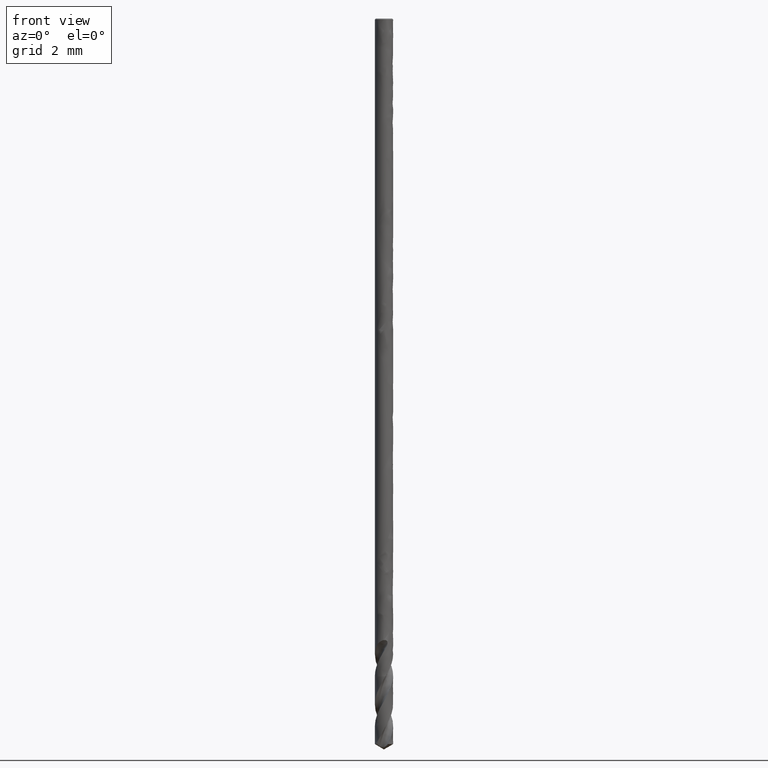
[diagram: clean part render]
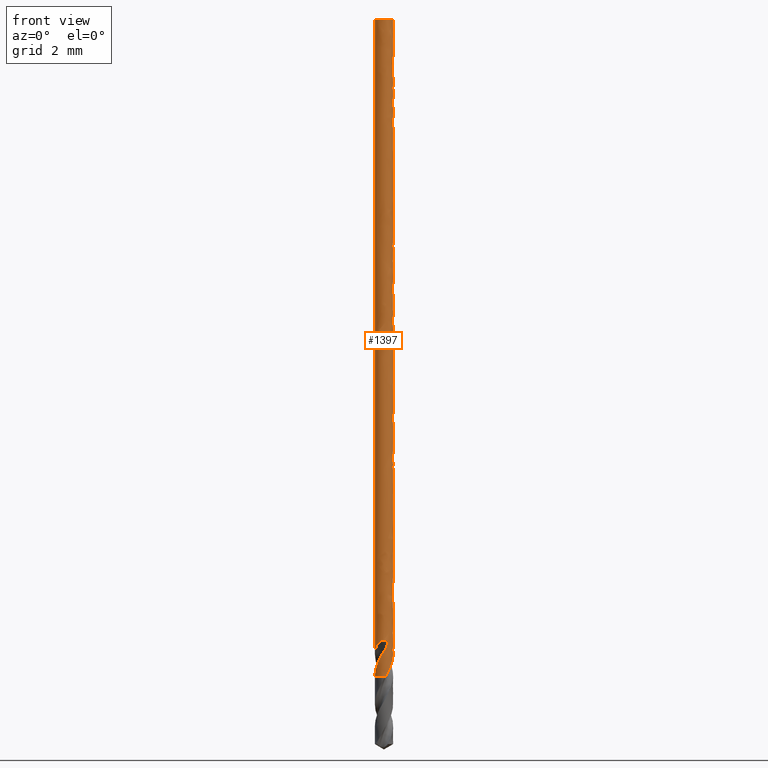
[diagram: same view with one face highlighted and labeled with its STEP entity id]
A machine part, front view. The second image highlights one B-rep face of the part: STEP entity #1397.
In plain terms, the highlighted face is a freeform B-spline surface patch.
Its self-contained STEP definition (entity closure, byte-faithful):
#73 = VERTEX_POINT('', #74);
#74 = CARTESIAN_POINT('', (-0.25, 1.68388934882762E-17, -0.0250000000000004));
#90 = EDGE_CURVE('', #73, #73, #91, .T.);
#91 = CIRCLE('', #92, 0.25);
#92 = AXIS2_PLACEMENT_3D('', #93, #94, #95);
#93 = CARTESIAN_POINT('', (9.37349864163736E-35, 1.53080849893427E-18, -0.0250000000000004));
#94 = DIRECTION('', (3.74939945665464E-33, 6.12323399573677E-17, -1.));
#95 = DIRECTION('', (-1., 6.12323399573677E-17, 0.));
#131 = VERTEX_POINT('', #132);
#132 = CARTESIAN_POINT('', (0.249906663317523, -0.00683078542351683, -18.));
#138 = EDGE_CURVE('', #139, #131, #141, .T.);
#139 = VERTEX_POINT('', #140);
#140 = CARTESIAN_POINT('', (0.240596655654178, 0.0679209046466918, -17.8687390508482));
#141 = B_SPLINE_CURVE_WITH_KNOTS('', 3, (#142, #143, #144, #145, #146, #147, #148, #149, #150, #151, #152, #153, #154), .UNSPECIFIED., .F., .U., (4, 3, 3, 3, 4), (0., 0.0872858098469411, 0.126138945142083, 0.137665234393021, 0.151452071354877), .UNSPECIFIED.);
#142 = CARTESIAN_POINT('', (0.240596655654178, 0.0679209046466918, -17.8687390508482));
#143 = CARTESIAN_POINT('', (0.244544084355322, 0.0539379026700701, -17.8939467519686));
#144 = CARTESIAN_POINT('', (0.247270648675801, 0.0395997103062645, -17.9191802059777));
#145 = CARTESIAN_POINT('', (0.248731675135994, 0.0251506219414607, -17.9443917902301));
#146 = CARTESIAN_POINT('', (0.249382015195017, 0.0187189649961497, -17.9556141079891));
#147 = CARTESIAN_POINT('', (0.249782756391597, 0.012261578020659, -17.9668389397494));
#148 = CARTESIAN_POINT('', (0.249932705935518, 0.0058002158365557, -17.9780620357126));
#149 = CARTESIAN_POINT('', (0.249977190423144, 0.00388336848502778, -17.9813915134853));
#150 = CARTESIAN_POINT('', (0.249999621055234, 0.00196603606763059, -17.9847210796947));
#151 = CARTESIAN_POINT('', (0.249999995238713, 4.87918370018735E-5, -17.9880506261048));
#152 = CARTESIAN_POINT('', (0.250000442807441, -0.00224446430539332, -17.9920331665838));
#153 = CARTESIAN_POINT('', (0.249969317482205, -0.00453856099134684, -17.996017358388));
#154 = CARTESIAN_POINT('', (0.249906663317523, -0.00683078542351683, -18.));
#247 = EDGE_CURVE('', #248, #139, #250, .T.);
#248 = VERTEX_POINT('', #249);
#249 = CARTESIAN_POINT('', (0.103707371253155, 0.2274747923348, -17.4891896216887));
#250 = B_SPLINE_CURVE_WITH_KNOTS('', 3, (#251, #252, #253, #254, #255, #256, #257, #258, #259, #260, #261, #262, #263, #264, #265, #266, #267, #268, #269, #270, #271, #272, #273, #274, #275, #276, #277, #278), .UNSPECIFIED., .F., .U., (4, 3, 3, 3, 3, 3, 3, 3, 3, 4), (0., 0.0389438872491027, 0.0973439906931834, 0.136270608200225, 0.175197098637016, 0.214117251850499, 0.253030250992673, 0.340489507666173, 0.427867221969009, 0.437126125641996), .UNSPECIFIED.);
#251 = CARTESIAN_POINT('', (0.103707371253155, 0.2274747923348, -17.4891896216887));
#252 = CARTESIAN_POINT('', (0.109345425257273, 0.224904363524869, -17.5005966056073));
#253 = CARTESIAN_POINT('', (0.114934663228293, 0.222102557584185, -17.5119781304098));
#254 = CARTESIAN_POINT('', (0.12044368847465, 0.219073772749549, -17.5233355571695));
#255 = CARTESIAN_POINT('', (0.128705001532726, 0.214531818667739, -17.5403671106295));
#256 = CARTESIAN_POINT('', (0.136797798366016, 0.209472559747017, -17.557351739074));
#257 = CARTESIAN_POINT('', (0.144637804410595, 0.203911513984088, -17.5742798674061));
#258 = CARTESIAN_POINT('', (0.149863564273203, 0.200204796211576, -17.5855633196234));
#259 = CARTESIAN_POINT('', (0.15497722471203, 0.196275058489051, -17.5968282486537));
#260 = CARTESIAN_POINT('', (0.159948407322419, 0.192136688310869, -17.6080766197557));
#261 = CARTESIAN_POINT('', (0.164919573705109, 0.187998331641792, -17.6193249541391));
#262 = CARTESIAN_POINT('', (0.169751305158446, 0.183648245769403, -17.6305598440954));
#263 = CARTESIAN_POINT('', (0.174404703231304, 0.179117278593673, -17.6417928196741));
#264 = CARTESIAN_POINT('', (0.179057343732071, 0.174587049058314, -17.6530239665271));
#265 = CARTESIAN_POINT('', (0.183528476164454, 0.169880260571483, -17.6642619138025));
#266 = CARTESIAN_POINT('', (0.187806292156689, 0.16501150452728, -17.6755004282874));
#267 = CARTESIAN_POINT('', (0.192083321826206, 0.160143643428884, -17.6867368769752));
#268 = CARTESIAN_POINT('', (0.196170649981713, 0.155109910657432, -17.6979764985279));
#269 = CARTESIAN_POINT('', (0.200057490436541, 0.149923315465719, -17.7092120908656));
#270 = CARTESIAN_POINT('', (0.208793393206352, 0.138266137398405, -17.7344647461685));
#271 = CARTESIAN_POINT('', (0.21651523283876, 0.125830186214474, -17.759740600353));
#272 = CARTESIAN_POINT('', (0.223088100583752, 0.112834832289997, -17.7849957104008));
#273 = CARTESIAN_POINT('', (0.22965484013559, 0.0998515945440344, -17.8102272739239));
#274 = CARTESIAN_POINT('', (0.235089430474209, 0.0862816710969015, -17.8354833672166));
#275 = CARTESIAN_POINT('', (0.239299371546172, 0.0723589025456238, -17.8607172975599));
#276 = CARTESIAN_POINT('', (0.239745474298634, 0.0708835884577454, -17.8633911890917));
#277 = CARTESIAN_POINT('', (0.240177929378235, 0.0694041614164657, -17.8660651262217));
#278 = CARTESIAN_POINT('', (0.240596655654178, 0.0679209046466911, -17.8687390508482));
#281 = VERTEX_POINT('', #282);
#282 = CARTESIAN_POINT('', (0.0405393630991359, 0.246691224082895, -17.3733331841335));
#291 = EDGE_CURVE('', #292, #281, #294, .T.);
#292 = VERTEX_POINT('', #293);
#293 = CARTESIAN_POINT('', (-0.019484894198326, 0.249239521139968, -17.));
#294 = B_SPLINE_CURVE_WITH_KNOTS('', 3, (#295, #296, #297, #298, #299, #300, #301, #302, #303, #304, #305, #306, #307, #308, #309, #310, #311, #312, #313, #314, #315, #316, #317, #318, #319, #320, #321, #322, #323, #324, #325, #326, #327, #328, #329, #330, #331, #332, #333, #334, #335, #336, #337, #338, #339, #340, #341, #342, #343, #344, #345, #346, #347, #348, #349, #350, #351, #352), .UNSPECIFIED., .F., .U., (4, 3, 3, 3, 3, 3, 3, 3, 3, 3, 3, 3, 3, 3, 3, 3, 3, 3, 3, 4), (0., 0.0174546525459783, 0.0348106917243188, 0.0520386400848942, 0.0691527268931656, 0.086236247491435, 0.1033735452307, 0.11486416143196, 0.126381297336948, 0.152375000844995, 0.178463179536588, 0.204592619545828, 0.230730425648785, 0.270051144584242, 0.309285493265379, 0.348415817912286, 0.374413411671347, 0.391733820990963, 0.430900950231336, 0.455349686628611), .UNSPECIFIED.);
#295 = CARTESIAN_POINT('', (-0.0194848941982343, 0.249239521139975, -17.));
#296 = CARTESIAN_POINT('', (-0.0252854107096909, 0.248786051922879, -17.0000053782072));
#297 = CARTESIAN_POINT('', (-0.0311001756266975, 0.248124163065481, -17.0004563209356));
#298 = CARTESIAN_POINT('', (-0.0367668621542792, 0.247281616476698, -17.001471423935));
#299 = CARTESIAN_POINT('', (-0.0424015336623491, 0.246443830014552, -17.0024807919177));
#300 = CARTESIAN_POINT('', (-0.0479506505895424, 0.24541642458422, -17.0040664626283));
#301 = CARTESIAN_POINT('', (-0.0531658239608024, 0.244281385215021, -17.0062989243239));
#302 = CARTESIAN_POINT('', (-0.0583425083764287, 0.243154722648819, -17.0085149100344));
#303 = CARTESIAN_POINT('', (-0.0632606325051497, 0.241906740577946, -17.0114098327104));
#304 = CARTESIAN_POINT('', (-0.0676489462867, 0.240673264128569, -17.0149025767247));
#305 = CARTESIAN_POINT('', (-0.0720082571824333, 0.239447939871218, -17.0183722367799));
#306 = CARTESIAN_POINT('', (-0.0759129580327543, 0.238221151024045, -17.0224870797097));
#307 = CARTESIAN_POINT('', (-0.0792114216470164, 0.23711927521958, -17.0270091986176));
#308 = CARTESIAN_POINT('', (-0.0825039941183477, 0.236019367394337, -17.031523240902));
#309 = CARTESIAN_POINT('', (-0.0852480922431854, 0.235028239730649, -17.0365022296103));
#310 = CARTESIAN_POINT('', (-0.0874472862143198, 0.234207113755649, -17.0416903609172));
#311 = CARTESIAN_POINT('', (-0.0896534030186946, 0.233383402961724, -17.0468948239204));
#312 = CARTESIAN_POINT('', (-0.0913428922082662, 0.232719324155925, -17.0523642445225));
#313 = CARTESIAN_POINT('', (-0.0925918174240027, 0.232221349892986, -17.0579161895346));
#314 = CARTESIAN_POINT('', (-0.093429226012944, 0.231887456462377, -17.0616387874771));
#315 = CARTESIAN_POINT('', (-0.0940735776408783, 0.231625617912125, -17.0654156306739));
#316 = CARTESIAN_POINT('', (-0.0945500182589157, 0.231430970371813, -17.0692111003526));
#317 = CARTESIAN_POINT('', (-0.0950275584754266, 0.231235873595795, -17.0730153297644));
#318 = CARTESIAN_POINT('', (-0.095337676940208, 0.231107679268898, -17.0768471758239));
#319 = CARTESIAN_POINT('', (-0.0955031537440296, 0.231039277234293, -17.0806820431511));
#320 = CARTESIAN_POINT('', (-0.095876628105319, 0.230884896646834, -17.0893371814701));
#321 = CARTESIAN_POINT('', (-0.095519585878772, 0.231034476009256, -17.0980473680239));
#322 = CARTESIAN_POINT('', (-0.0946316018747144, 0.231397622992601, -17.1066586597076));
#323 = CARTESIAN_POINT('', (-0.0937403904563046, 0.23176208984858, -17.1153012494848));
#324 = CARTESIAN_POINT('', (-0.0923086825177251, 0.232342457069277, -17.1238901736514));
#325 = CARTESIAN_POINT('', (-0.0904652599063082, 0.233058011555245, -17.1323584218051));
#326 = CARTESIAN_POINT('', (-0.088618921719725, 0.23377469776916, -17.1408400634225));
#327 = CARTESIAN_POINT('', (-0.0863532437477145, 0.234628890977358, -17.1492262194445));
#328 = CARTESIAN_POINT('', (-0.0837558896514006, 0.235552437789769, -17.1574882810116));
#329 = CARTESIAN_POINT('', (-0.0811577039372725, 0.236476280302325, -17.165752987916));
#330 = CARTESIAN_POINT('', (-0.0782219967466266, 0.237471328351126, -17.1739088396246));
#331 = CARTESIAN_POINT('', (-0.0750135602219949, 0.238480535438056, -17.1819460574474));
#332 = CARTESIAN_POINT('', (-0.0701869106435889, 0.23999874810122, -17.1940369415021));
#333 = CARTESIAN_POINT('', (-0.0647339331783847, 0.241550140131075, -17.2058843639961));
#334 = CARTESIAN_POINT('', (-0.0588257740948464, 0.242980510128164, -17.217496370325));
#335 = CARTESIAN_POINT('', (-0.0529305926275984, 0.244407738234062, -17.2290828702041));
#336 = CARTESIAN_POINT('', (-0.0465716049133888, 0.245716842103784, -17.2404552701596));
#337 = CARTESIAN_POINT('', (-0.0398994749940521, 0.246795526489439, -17.2516515305346));
#338 = CARTESIAN_POINT('', (-0.0332450352338348, 0.247871350904043, -17.2628181056921));
#339 = CARTESIAN_POINT('', (-0.0262707402816778, 0.248719196139192, -17.2738214618359));
#340 = CARTESIAN_POINT('', (-0.0191230388517854, 0.249267545791813, -17.2847182982745));
#341 = CARTESIAN_POINT('', (-0.0143742145125503, 0.249631860977936, -17.2919579910076));
#342 = CARTESIAN_POINT('', (-0.00954631217302101, 0.249865043801591, -17.2991538885086));
#343 = CARTESIAN_POINT('', (-0.00468175791320696, 0.249956158441625, -17.3063250124794));
#344 = CARTESIAN_POINT('', (-0.00144083986062396, 0.250016861861911, -17.3111026393478));
#345 = CARTESIAN_POINT('', (0.00181683980704667, 0.250014677137097, -17.3158701196989));
#346 = CARTESIAN_POINT('', (0.00507802074548844, 0.249948422090069, -17.3206338642741));
#347 = CARTESIAN_POINT('', (0.0124526210182159, 0.249798597686852, -17.3314062540024));
#348 = CARTESIAN_POINT('', (0.0198468040913561, 0.249318106713481, -17.3421656653449));
#349 = CARTESIAN_POINT('', (0.027112184966398, 0.248525510614803, -17.3529840565911));
#350 = CARTESIAN_POINT('', (0.0316473496640599, 0.24803075969836, -17.3597370660905));
#351 = CARTESIAN_POINT('', (0.0361340489820216, 0.247415159963562, -17.3665152109029));
#352 = CARTESIAN_POINT('', (0.0405393630991359, 0.246691224082895, -17.3733331841335));
#354 = EDGE_CURVE('', #292, #355, #357, .T.);
#355 = VERTEX_POINT('', #356);
#356 = CARTESIAN_POINT('', (-0.0192736733503587, 0.249255943791887, -17.));
#357 = LINE('', #358, #359);
#358 = CARTESIAN_POINT('', (-0.019484894198326, 0.249239521139968, -17.));
#359 = VECTOR('', #360, 0.000211858325567081);
#360 = DIRECTION('', (0.000211220847967344, 1.64226519187294E-5, 0.));
#362 = EDGE_CURVE('', #355, #363, #365, .T.);
#363 = VERTEX_POINT('', #364);
#364 = CARTESIAN_POINT('', (0.192065465634654, 0.160033924249028, -17.1482613426466));
#365 = B_SPLINE_CURVE_WITH_KNOTS('', 3, (#366, #367, #368, #369, #370, #371, #372, #373, #374, #375, #376, #377, #378, #379, #380, #381, #382, #383, #384, #385, #386, #387, #388, #389, #390, #391, #392, #393, #394, #395, #396, #397, #398, #399), .UNSPECIFIED., .F., .U., (4, 3, 3, 3, 3, 3, 3, 3, 3, 3, 3, 4), (0., 0.0172395838290236, 0.0249192390247147, 0.0509907441108033, 0.076864615610026, 0.102630013521394, 0.128333550948496, 0.154001414409359, 0.19225829541, 0.230490840123179, 0.268738921384347, 0.287770317675582), .UNSPECIFIED.);
#366 = CARTESIAN_POINT('', (-0.0192736733472498, 0.249255943792128, -17.));
#367 = CARTESIAN_POINT('', (-0.0135442508060331, 0.24969897041307, -17.000005306327));
#368 = CARTESIAN_POINT('', (-0.00778722907083726, 0.249943585247307, -17.0004413249094));
#369 = CARTESIAN_POINT('', (-0.0020921020902104, 0.249991246064427, -17.0012067271048));
#370 = CARTESIAN_POINT('', (0.000444885573799167, 0.250012477356635, -17.0015476880587));
#371 = CARTESIAN_POINT('', (0.00297430629426651, 0.249994979266312, -17.0019547054566));
#372 = CARTESIAN_POINT('', (0.00549087136588006, 0.249939693389528, -17.0024203826617));
#373 = CARTESIAN_POINT('', (0.0140343068967953, 0.249752004491911, -17.0040013007253));
#374 = CARTESIAN_POINT('', (0.0224658279082368, 0.249125285073702, -17.006260563928));
#375 = CARTESIAN_POINT('', (0.0306570855338442, 0.248113165927508, -17.0089815440937));
#376 = CARTESIAN_POINT('', (0.0387862497889252, 0.247108719093923, -17.0116818980213));
#377 = CARTESIAN_POINT('', (0.0467281848308405, 0.245720443866511, -17.014854307032));
#378 = CARTESIAN_POINT('', (0.054417100720654, 0.244005694911325, -17.0183649116412));
#379 = CARTESIAN_POINT('', (0.0620737816087088, 0.242298134867603, -17.0218607983958));
#380 = CARTESIAN_POINT('', (0.0695105618740868, 0.240260601454283, -17.0257069390878));
#381 = CARTESIAN_POINT('', (0.0766885151378522, 0.237947203484201, -17.0298163094168));
#382 = CARTESIAN_POINT('', (0.0838492347587893, 0.235639359781871, -17.0339158135043));
#383 = CARTESIAN_POINT('', (0.0907737052737515, 0.23305038399244, -17.0382899276327));
#384 = CARTESIAN_POINT('', (0.0974366924665924, 0.230230517006697, -17.0428791469191));
#385 = CARTESIAN_POINT('', (0.104090432092601, 0.227414563717267, -17.0474619968232));
#386 = CARTESIAN_POINT('', (0.110498983955381, 0.224361905213307, -17.0522703135427));
#387 = CARTESIAN_POINT('', (0.116645310853141, 0.221119586323723, -17.0572617453079));
#388 = CARTESIAN_POINT('', (0.125806154998865, 0.216287045114593, -17.064701266379));
#389 = CARTESIAN_POINT('', (0.134414642008014, 0.211016547164113, -17.0725721138717));
#390 = CARTESIAN_POINT('', (0.142436520653246, 0.205455196050618, -17.0807783207031));
#391 = CARTESIAN_POINT('', (0.150453296353868, 0.199897382670358, -17.0889793073335));
#392 = CARTESIAN_POINT('', (0.157910794635058, 0.194031017586465, -17.0975445125772));
#393 = CARTESIAN_POINT('', (0.164796836471098, 0.187994687927927, -17.1064078819141));
#394 = CARTESIAN_POINT('', (0.171685676585939, 0.181955905287875, -17.1152748530558));
#395 = CARTESIAN_POINT('', (0.178022268735042, 0.17573014762844, -17.1244642959293));
#396 = CARTESIAN_POINT('', (0.183813824979375, 0.169447566363321, -17.1339264965214));
#397 = CARTESIAN_POINT('', (0.186695574818701, 0.166321493372315, -17.1386346775155));
#398 = CARTESIAN_POINT('', (0.18944521684016, 0.163178628143248, -17.1434148061072));
#399 = CARTESIAN_POINT('', (0.192065465634654, 0.160033924249029, -17.1482613426466));
#550 = EDGE_CURVE('', #281, #248, #551, .T.);
#551 = B_SPLINE_CURVE_WITH_KNOTS('', 3, (#552, #553, #554, #555, #556, #557, #558, #559, #560, #561, #562, #563, #564, #565, #566, #567, #568, #569, #570), .UNSPECIFIED., .F., .U., (4, 3, 3, 3, 3, 3, 4), (0., 0.0390447712593143, 0.056364290466635, 0.0823397920666993, 0.0996434657885381, 0.116951465091947, 0.133494450741769), .UNSPECIFIED.);
#552 = CARTESIAN_POINT('', (0.0405393630991359, 0.246691224082895, -17.3733331841335));
#553 = CARTESIAN_POINT('', (0.0475746748319471, 0.245535094358733, -17.3842215262103));
#554 = CARTESIAN_POINT('', (0.0543576153150243, 0.244110229523004, -17.3952514150437));
#555 = CARTESIAN_POINT('', (0.0608319108292321, 0.24248603799985, -17.4064243170745));
#556 = CARTESIAN_POINT('', (0.0637037853951624, 0.241765577477882, -17.4113804042811));
#557 = CARTESIAN_POINT('', (0.0665140542418835, 0.241006313719038, -17.4163671691702));
#558 = CARTESIAN_POINT('', (0.0692592652448122, 0.240214808406497, -17.421383827737));
#559 = CARTESIAN_POINT('', (0.0733764830466175, 0.23902772305694, -17.428907721505));
#560 = CARTESIAN_POINT('', (0.0773493904408178, 0.237768641200468, -17.4365001061103));
#561 = CARTESIAN_POINT('', (0.0812320984052383, 0.236434655219638, -17.4441234053798));
#562 = CARTESIAN_POINT('', (0.083818578266453, 0.235546015665447, -17.4492016935789));
#563 = CARTESIAN_POINT('', (0.0863665456482879, 0.234623498450331, -17.4542938253414));
#564 = CARTESIAN_POINT('', (0.0889032156724227, 0.233658336558111, -17.4593832592072));
#565 = CARTESIAN_POINT('', (0.0914405198146808, 0.232692933394207, -17.4644739653324));
#566 = CARTESIAN_POINT('', (0.0939714186144543, 0.231682664172197, -17.4695595692058));
#567 = CARTESIAN_POINT('', (0.0964951779066392, 0.23062671276495, -17.4746390189883));
#568 = CARTESIAN_POINT('', (0.0989073870258063, 0.229617434415051, -17.4794939570656));
#569 = CARTESIAN_POINT('', (0.101312380586547, 0.228566685566839, -17.4843440455378));
#570 = CARTESIAN_POINT('', (0.103707371253155, 0.2274747923348, -17.4891896216887));
#612 = VERTEX_POINT('', #613);
#613 = CARTESIAN_POINT('', (0.0435410227567571, -0.246179161054089, -18.));
#620 = EDGE_CURVE('', #363, #612, #621, .T.);
#621 = B_SPLINE_CURVE_WITH_KNOTS('', 3, (#622, #623, #624, #625, #626, #627, #628, #629, #630, #631, #632, #633, #634, #635, #636, #637, #638, #639, #640, #641, #642, #643, #644, #645, #646, #647, #648, #649, #650, #651, #652, #653, #654, #655, #656, #657, #658, #659, #660, #661, #662, #663, #664, #665, #666, #667, #668, #669, #670, #671, #672, #673, #674, #675, #676, #677, #678, #679, #680, #681, #682, #683, #684, #685, #686, #687, #688, #689, #690, #691), .UNSPECIFIED., .F., .U., (4, 3, 3, 3, 3, 3, 3, 3, 3, 3, 3, 3, 3, 3, 3, 3, 3, 3, 3, 3, 3, 3, 3, 4), (0., 0.0386559077093845, 0.0773304556097021, 0.11603188820604, 0.154764948181162, 0.193533819548227, 0.232344124694459, 0.27118284276653, 0.297099552268526, 0.323107012443049, 0.340428357994753, 0.366405554685973, 0.383714934887122, 0.442198352388452, 0.500636706821, 0.539584057466646, 0.578527639456918, 0.604485550553129, 0.662891991855886, 0.72127550255865, 0.779634049286836, 0.867080736105634, 0.954447133372779, 1.00062155482832), .UNSPECIFIED.);
#622 = CARTESIAN_POINT('', (0.192065465634654, 0.160033924249028, -17.1482613426466));
#623 = CARTESIAN_POINT('', (0.197387623506078, 0.153646511489185, -17.1581054584597));
#624 = CARTESIAN_POINT('', (0.202333527588402, 0.147061762696115, -17.1680336671574));
#625 = CARTESIAN_POINT('', (0.206894594834242, 0.140337545326902, -17.1780342965709));
#626 = CARTESIAN_POINT('', (0.211457861463549, 0.13361008548576, -17.1880397483686));
#627 = CARTESIAN_POINT('', (0.215640040786945, 0.126737177125153, -17.198129093685));
#628 = CARTESIAN_POINT('', (0.219440897961435, 0.119773504173006, -17.2082903892557));
#629 = CARTESIAN_POINT('', (0.223244397310051, 0.112804990408473, -17.2184587484732));
#630 = CARTESIAN_POINT('', (0.226669732586564, 0.105738765907472, -17.2287087463925));
#631 = CARTESIAN_POINT('', (0.229721950292314, 0.0986297397030785, -17.2390319258474));
#632 = CARTESIAN_POINT('', (0.232776662315174, 0.0915149038981231, -17.2493635415561));
#633 = CARTESIAN_POINT('', (0.235460832586171, 0.084350064067303, -17.2597767147259));
#634 = CARTESIAN_POINT('', (0.237786404386582, 0.0771856585701309, -17.2702627743719));
#635 = CARTESIAN_POINT('', (0.240114126338913, 0.0700146290847312, -17.2807585291051));
#636 = CARTESIAN_POINT('', (0.242084107399801, 0.0628398393698607, -17.2913368275717));
#637 = CARTESIAN_POINT('', (0.243714825612012, 0.0557053298790337, -17.3019877596071));
#638 = CARTESIAN_POINT('', (0.245347286635296, 0.048563195464388, -17.312650074702));
#639 = CARTESIAN_POINT('', (0.246640979896834, 0.0414557023022934, -17.3233926776705));
#640 = CARTESIAN_POINT('', (0.247618126047448, 0.0344276582539622, -17.3342098750167));
#641 = CARTESIAN_POINT('', (0.248595987564276, 0.0273944689924309, -17.3450349916056));
#642 = CARTESIAN_POINT('', (0.249257568018543, 0.0204362796950858, -17.3559420978079));
#643 = CARTESIAN_POINT('', (0.249630216611322, 0.013592459483866, -17.3669251926104));
#644 = CARTESIAN_POINT('', (0.249878881495355, 0.00902564293835251, -17.3742541079701));
#645 = CARTESIAN_POINT('', (0.249999156761946, 0.00450821537733037, -17.3816194128045));
#646 = CARTESIAN_POINT('', (0.249999995580853, 4.70062526313406E-5, -17.3890172679245));
#647 = CARTESIAN_POINT('', (0.250000837336992, -0.00442982436631342, -17.3964410275803));
#648 = CARTESIAN_POINT('', (0.249881279184827, -0.00885147701051727, -17.4038992945289));
#649 = CARTESIAN_POINT('', (0.249651035707628, -0.0132045586915862, -17.4113927508973));
#650 = CARTESIAN_POINT('', (0.249497690213572, -0.0161037742053889, -17.4163835014843));
#651 = CARTESIAN_POINT('', (0.249295347000854, -0.0189718172775677, -17.4213911994663));
#652 = CARTESIAN_POINT('', (0.249047093498667, -0.0218069993321357, -17.4264148106947));
#653 = CARTESIAN_POINT('', (0.248674782350186, -0.0260589832018119, -17.4339488291455));
#654 = CARTESIAN_POINT('', (0.248199968090795, -0.0302358338128762, -17.4415209279022));
#655 = CARTESIAN_POINT('', (0.247625984351821, -0.0343710906696229, -17.4491070738165));
#656 = CARTESIAN_POINT('', (0.247243521883476, -0.0371265355320405, -17.4541619488846));
#657 = CARTESIAN_POINT('', (0.246816725270946, -0.0398653013659926, -17.4592227697152));
#658 = CARTESIAN_POINT('', (0.246342644562817, -0.0426063548053295, -17.4642777068471));
#659 = CARTESIAN_POINT('', (0.244740862196224, -0.0518675860466168, -17.48135688561));
#660 = CARTESIAN_POINT('', (0.242598534179509, -0.0611280701142767, -17.4983944407906));
#661 = CARTESIAN_POINT('', (0.239921880068982, -0.0702672858744974, -17.5154045764788));
#662 = CARTESIAN_POINT('', (0.237247288393473, -0.0793994596196306, -17.5324016053934));
#663 = CARTESIAN_POINT('', (0.234036422986341, -0.0884280680410293, -17.5493790748099));
#664 = CARTESIAN_POINT('', (0.230292138961125, -0.097290959151988, -17.5663165636485));
#665 = CARTESIAN_POINT('', (0.227796689794854, -0.103197801176965, -17.577604874609));
#666 = CARTESIAN_POINT('', (0.22506372771074, -0.109031885416309, -17.5888815262799));
#667 = CARTESIAN_POINT('', (0.222101704704536, -0.114764248646253, -17.6001469798927));
#668 = CARTESIAN_POINT('', (0.219139968312023, -0.120496057196581, -17.6114113434284));
#669 = CARTESIAN_POINT('', (0.215947308363385, -0.12612969050532, -17.622667754161));
#670 = CARTESIAN_POINT('', (0.212537418413691, -0.131635275568684, -17.6339182022064));
#671 = CARTESIAN_POINT('', (0.210264550443196, -0.13530503269691, -17.6414172075683));
#672 = CARTESIAN_POINT('', (0.207895669807265, -0.138917247506991, -17.6489161033186));
#673 = CARTESIAN_POINT('', (0.205437301315532, -0.142462329154732, -17.6564165665095));
#674 = CARTESIAN_POINT('', (0.199905864117801, -0.150438918734872, -17.6732929384749));
#675 = CARTESIAN_POINT('', (0.19391466139944, -0.158086077144308, -17.6901837416692));
#676 = CARTESIAN_POINT('', (0.187498166995615, -0.165361535349924, -17.7070636414609));
#677 = CARTESIAN_POINT('', (0.181084191732884, -0.172634137181857, -17.7239369141373));
#678 = CARTESIAN_POINT('', (0.174242083743008, -0.179537473592487, -17.7408160062893));
#679 = CARTESIAN_POINT('', (0.167027827882544, -0.186015334617442, -17.7576899203524));
#680 = CARTESIAN_POINT('', (0.159816656737228, -0.192490425799405, -17.7745566193652));
#681 = CARTESIAN_POINT('', (0.152226513843437, -0.198547183220434, -17.7914312775145));
#682 = CARTESIAN_POINT('', (0.144314043373981, -0.204140777124641, -17.8082989344056));
#683 = CARTESIAN_POINT('', (0.132457693860545, -0.212522432970373, -17.8335740790455));
#684 = CARTESIAN_POINT('', (0.119859072472565, -0.219873857732807, -17.8588741264912));
#685 = CARTESIAN_POINT('', (0.106732593546127, -0.226071124814555, -17.8841515382807));
#686 = CARTESIAN_POINT('', (0.0936181667527781, -0.232262701848875, -17.9094057415058));
#687 = CARTESIAN_POINT('', (0.0799526043215035, -0.23731370287804, -17.9346847091879));
#688 = CARTESIAN_POINT('', (0.0659677607405254, -0.241139491877424, -17.9599411160063));
#689 = CARTESIAN_POINT('', (0.0585765659368371, -0.243161477436899, -17.9732894971844));
#690 = CARTESIAN_POINT('', (0.0510856396908271, -0.244844765664118, -17.9866510071328));
#691 = CARTESIAN_POINT('', (0.0435410227567571, -0.246179161054089, -18.));
#786 = VERTEX_POINT('', #787);
#787 = CARTESIAN_POINT('', (-0.240596655654179, -0.0679209046466847, -17.8687390508482));
#797 = EDGE_CURVE('', #798, #786, #800, .T.);
#798 = VERTEX_POINT('', #799);
#799 = CARTESIAN_POINT('', (-0.103707371253154, -0.227474792334798, -17.4891896216887));
#800 = B_SPLINE_CURVE_WITH_KNOTS('', 3, (#801, #802, #803, #804, #805, #806, #807, #808, #809, #810, #811, #812, #813, #814, #815, #816, #817, #818, #819, #820, #821, #822, #823, #824, #825, #826, #827, #828), .UNSPECIFIED., .F., .U., (4, 3, 3, 3, 3, 3, 3, 3, 3, 4), (0., 0.0389438872491016, 0.0973439906931826, 0.136270608200222, 0.175197098637013, 0.214117251850497, 0.253030250992671, 0.340489507666172, 0.427867221969008, 0.437126125642008), .UNSPECIFIED.);
#801 = CARTESIAN_POINT('', (-0.103707371253154, -0.227474792334798, -17.4891896216887));
#802 = CARTESIAN_POINT('', (-0.109345425257272, -0.224904363524868, -17.5005966056073));
#803 = CARTESIAN_POINT('', (-0.114934663228292, -0.222102557584183, -17.5119781304098));
#804 = CARTESIAN_POINT('', (-0.120443688474648, -0.219073772749547, -17.5233355571695));
#805 = CARTESIAN_POINT('', (-0.128705001532725, -0.214531818667738, -17.5403671106295));
#806 = CARTESIAN_POINT('', (-0.136797798366015, -0.209472559747016, -17.557351739074));
#807 = CARTESIAN_POINT('', (-0.144637804410594, -0.203911513984087, -17.5742798674061));
#808 = CARTESIAN_POINT('', (-0.149863564273201, -0.200204796211575, -17.5855633196234));
#809 = CARTESIAN_POINT('', (-0.154977224712028, -0.19627505848905, -17.5968282486537));
#810 = CARTESIAN_POINT('', (-0.159948407322417, -0.192136688310868, -17.6080766197557));
#811 = CARTESIAN_POINT('', (-0.164919573705107, -0.187998331641791, -17.6193249541391));
#812 = CARTESIAN_POINT('', (-0.169751305158444, -0.183648245769402, -17.6305598440954));
#813 = CARTESIAN_POINT('', (-0.174404703231302, -0.179117278593673, -17.6417928196741));
#814 = CARTESIAN_POINT('', (-0.17905734373207, -0.174587049058313, -17.6530239665271));
#815 = CARTESIAN_POINT('', (-0.183528476164453, -0.169880260571482, -17.6642619138025));
#816 = CARTESIAN_POINT('', (-0.187806292156688, -0.165011504527279, -17.6755004282874));
#817 = CARTESIAN_POINT('', (-0.192083321826205, -0.160143643428883, -17.6867368769752));
#818 = CARTESIAN_POINT('', (-0.196170649981712, -0.155109910657431, -17.6979764985279));
#819 = CARTESIAN_POINT('', (-0.20005749043654, -0.149923315465718, -17.7092120908656));
#820 = CARTESIAN_POINT('', (-0.208793393206351, -0.138266137398404, -17.7344647461685));
#821 = CARTESIAN_POINT('', (-0.21651523283876, -0.125830186214474, -17.759740600353));
#822 = CARTESIAN_POINT('', (-0.223088100583752, -0.112834832289996, -17.7849957104008));
#823 = CARTESIAN_POINT('', (-0.22965484013559, -0.0998515945440334, -17.8102272739239));
#824 = CARTESIAN_POINT('', (-0.235089430474209, -0.0862816710969003, -17.8354833672166));
#825 = CARTESIAN_POINT('', (-0.239299371546172, -0.0723589025456226, -17.8607172975599));
#826 = CARTESIAN_POINT('', (-0.239745474298634, -0.0708835884577422, -17.8633911890917));
#827 = CARTESIAN_POINT('', (-0.240177929378236, -0.0694041614164604, -17.8660651262217));
#828 = CARTESIAN_POINT('', (-0.24059665565418, -0.0679209046466838, -17.8687390508482));
#831 = VERTEX_POINT('', #832);
#832 = CARTESIAN_POINT('', (-0.0405393630991358, -0.246691224082893, -17.3733331841335));
#841 = EDGE_CURVE('', #842, #831, #844, .T.);
#842 = VERTEX_POINT('', #843);
#843 = CARTESIAN_POINT('', (0.0194848941978037, -0.249239521140007, -17.));
#844 = B_SPLINE_CURVE_WITH_KNOTS('', 3, (#845, #846, #847, #848, #849, #850, #851, #852, #853, #854, #855, #856, #857, #858, #859, #860, #861, #862, #863, #864, #865, #866, #867, #868, #869, #870, #871, #872, #873, #874, #875, #876, #877, #878, #879, #880, #881, #882, #883, #884, #885, #886, #887, #888, #889, #890, #891, #892, #893, #894, #895, #896, #897, #898, #899, #900, #901, #902), .UNSPECIFIED., .F., .U., (4, 3, 3, 3, 3, 3, 3, 3, 3, 3, 3, 3, 3, 3, 3, 3, 3, 3, 3, 4), (0., 0.0174546525459791, 0.0348106917243209, 0.0520386400848976, 0.0691527268931707, 0.0862362474914405, 0.103373545230705, 0.114864161431964, 0.126381297336952, 0.152375000844997, 0.17846317953659, 0.204592619545829, 0.230730425648787, 0.270051144584245, 0.309285493265383, 0.34841581791229, 0.374413411671351, 0.391733820990967, 0.43090095023134, 0.455349686628813), .UNSPECIFIED.);
#845 = CARTESIAN_POINT('', (0.0194848941980338, -0.249239521139989, -17.));
#846 = CARTESIAN_POINT('', (0.0252854107094911, -0.248786051922897, -17.0000053782071));
#847 = CARTESIAN_POINT('', (0.031100175626499, -0.248124163065503, -17.0004563209356));
#848 = CARTESIAN_POINT('', (0.036766862154084, -0.247281616476725, -17.001471423935));
#849 = CARTESIAN_POINT('', (0.0424015336621572, -0.246443830014583, -17.0024807919177));
#850 = CARTESIAN_POINT('', (0.0479506505893556, -0.245416424584254, -17.0040664626282));
#851 = CARTESIAN_POINT('', (0.0531658239606229, -0.244281385215058, -17.0062989243238));
#852 = CARTESIAN_POINT('', (0.0583425083762565, -0.243154722648858, -17.0085149100343));
#853 = CARTESIAN_POINT('', (0.0632606325049868, -0.241906740577986, -17.0114098327103));
#854 = CARTESIAN_POINT('', (0.0676489462865486, -0.240673264128609, -17.0149025767246));
#855 = CARTESIAN_POINT('', (0.0720082571822933, -0.239447939871258, -17.0183722367798));
#856 = CARTESIAN_POINT('', (0.0759129580326276, -0.238221151024083, -17.0224870797096));
#857 = CARTESIAN_POINT('', (0.0792114216469028, -0.237119275219616, -17.0270091986174));
#858 = CARTESIAN_POINT('', (0.082503994118247, -0.236019367394371, -17.0315232409018));
#859 = CARTESIAN_POINT('', (0.0852480922430976, -0.235028239730679, -17.0365022296101));
#860 = CARTESIAN_POINT('', (0.0874472862142439, -0.234207113755675, -17.0416903609171));
#861 = CARTESIAN_POINT('', (0.0896534030186306, -0.233383402961747, -17.0468948239203));
#862 = CARTESIAN_POINT('', (0.0913428922082126, -0.232719324155944, -17.0523642445223));
#863 = CARTESIAN_POINT('', (0.0925918174239591, -0.232221349893001, -17.0579161895344));
#864 = CARTESIAN_POINT('', (0.093429226012907, -0.231887456462389, -17.0616387874769));
#865 = CARTESIAN_POINT('', (0.094073577640848, -0.231625617912135, -17.0654156306737));
#866 = CARTESIAN_POINT('', (0.0945500182588912, -0.231430970371821, -17.0692111003524));
#867 = CARTESIAN_POINT('', (0.0950275584754078, -0.2312358735958, -17.0730153297642));
#868 = CARTESIAN_POINT('', (0.0953376769401946, -0.231107679268902, -17.0768471758237));
#869 = CARTESIAN_POINT('', (0.0955031537440212, -0.231039277234295, -17.0806820431509));
#870 = CARTESIAN_POINT('', (0.0958766281053217, -0.230884896646831, -17.0893371814699));
#871 = CARTESIAN_POINT('', (0.0955195858787841, -0.231034476009249, -17.0980473680237));
#872 = CARTESIAN_POINT('', (0.0946316018747347, -0.231397622992591, -17.1066586597074));
#873 = CARTESIAN_POINT('', (0.0937403904563332, -0.231762089848567, -17.1153012494846));
#874 = CARTESIAN_POINT('', (0.0923086825177609, -0.232342457069261, -17.1238901736512));
#875 = CARTESIAN_POINT('', (0.0904652599063505, -0.233058011555226, -17.1323584218049));
#876 = CARTESIAN_POINT('', (0.0886189217197738, -0.23377469776914, -17.1408400634223));
#877 = CARTESIAN_POINT('', (0.0863532437477685, -0.234628890977335, -17.1492262194443));
#878 = CARTESIAN_POINT('', (0.0837558896514599, -0.235552437789746, -17.1574882810114));
#879 = CARTESIAN_POINT('', (0.0811577039373368, -0.2364762803023, -17.1657529879158));
#880 = CARTESIAN_POINT('', (0.0782219967466959, -0.237471328351101, -17.1739088396244));
#881 = CARTESIAN_POINT('', (0.0750135602220683, -0.23848053543803, -17.1819460574472));
#882 = CARTESIAN_POINT('', (0.0701869106436685, -0.239998748101194, -17.1940369415019));
#883 = CARTESIAN_POINT('', (0.0647339331784692, -0.24155014013105, -17.2058843639959));
#884 = CARTESIAN_POINT('', (0.0588257740949354, -0.24298051012814, -17.2174963703248));
#885 = CARTESIAN_POINT('', (0.052930592627692, -0.24440773823404, -17.229082870204));
#886 = CARTESIAN_POINT('', (0.0465716049134862, -0.245716842103764, -17.2404552701594));
#887 = CARTESIAN_POINT('', (0.0398994749941526, -0.246795526489421, -17.2516515305344));
#888 = CARTESIAN_POINT('', (0.0332450352339385, -0.247871350904026, -17.2628181056919));
#889 = CARTESIAN_POINT('', (0.0262707402817838, -0.248719196139178, -17.2738214618358));
#890 = CARTESIAN_POINT('', (0.0191230388518932, -0.249267545791803, -17.2847182982743));
#891 = CARTESIAN_POINT('', (0.0143742145126593, -0.249631860977927, -17.2919579910074));
#892 = CARTESIAN_POINT('', (0.00954631217313107, -0.249865043801585, -17.2991538885085));
#893 = CARTESIAN_POINT('', (0.00468175791331752, -0.24995615844162, -17.3063250124793));
#894 = CARTESIAN_POINT('', (0.00144083986073488, -0.250016861861908, -17.3111026393476));
#895 = CARTESIAN_POINT('', (-0.00181683980693543, -0.250014677137096, -17.3158701196987));
#896 = CARTESIAN_POINT('', (-0.00507802074537712, -0.249948422090069, -17.3206338642739));
#897 = CARTESIAN_POINT('', (-0.0124526210181045, -0.249798597686856, -17.3314062540022));
#898 = CARTESIAN_POINT('', (-0.0198468040912456, -0.249318106713488, -17.3421656653447));
#899 = CARTESIAN_POINT('', (-0.0271121849662888, -0.248525510614812, -17.352984056591));
#900 = CARTESIAN_POINT('', (-0.0316473496639883, -0.248030759698367, -17.3597370660904));
#901 = CARTESIAN_POINT('', (-0.0361340489819861, -0.247415159963566, -17.3665152109028));
#902 = CARTESIAN_POINT('', (-0.0405393630991361, -0.246691224082892, -17.3733331841335));
#904 = EDGE_CURVE('', #842, #905, #907, .T.);
#905 = VERTEX_POINT('', #906);
#906 = CARTESIAN_POINT('', (0.019273673350881, -0.249255943791844, -17.));
#907 = LINE('', #908, #909);
#908 = CARTESIAN_POINT('', (0.0194848941978037, -0.249239521140007, -17.));
#909 = VECTOR('', #910, 0.000211858324519304);
#910 = DIRECTION('', (-0.000211220846922721, -1.64226518374888E-5, 0.));
#912 = EDGE_CURVE('', #905, #913, #915, .T.);
#913 = VERTEX_POINT('', #914);
#914 = CARTESIAN_POINT('', (-0.192065465634654, -0.160033924249026, -17.1482613426466));
#915 = B_SPLINE_CURVE_WITH_KNOTS('', 3, (#916, #917, #918, #919, #920, #921, #922, #923, #924, #925, #926, #927, #928, #929, #930, #931, #932, #933, #934, #935, #936, #937, #938, #939, #940, #941, #942, #943, #944, #945, #946, #947, #948, #949), .UNSPECIFIED., .F., .U., (4, 3, 3, 3, 3, 3, 3, 3, 3, 3, 3, 4), (0., 0.0172395838290254, 0.0249192390247146, 0.0509907441108052, 0.0768646156100288, 0.102630013521398, 0.128333550948501, 0.154001414409365, 0.192258295410006, 0.230490840123185, 0.268738921384352, 0.287770317675813), .UNSPECIFIED.);
#916 = CARTESIAN_POINT('', (0.0192736733474811, -0.249255943792108, -17.));
#917 = CARTESIAN_POINT('', (0.0135442508062642, -0.249698970413055, -17.0000053063269));
#918 = CARTESIAN_POINT('', (0.00778722907106711, -0.249943585247298, -17.0004413249094));
#919 = CARTESIAN_POINT('', (0.00209210209043852, -0.249991246064423, -17.0012067271048));
#920 = CARTESIAN_POINT('', (-0.000444885573570922, -0.250012477356633, -17.0015476880587));
#921 = CARTESIAN_POINT('', (-0.0029743062940384, -0.249994979266313, -17.0019547054565));
#922 = CARTESIAN_POINT('', (-0.00549087136565202, -0.249939693389531, -17.0024203826616));
#923 = CARTESIAN_POINT('', (-0.0140343068965703, -0.249752004491922, -17.0040013007253));
#924 = CARTESIAN_POINT('', (-0.0224658279080159, -0.24912528507372, -17.0062605639279));
#925 = CARTESIAN_POINT('', (-0.0306570855336276, -0.248113165927533, -17.0089815440936));
#926 = CARTESIAN_POINT('', (-0.0387862497887124, -0.247108719093954, -17.0116818980212));
#927 = CARTESIAN_POINT('', (-0.0467281848306325, -0.245720443866549, -17.0148543070319));
#928 = CARTESIAN_POINT('', (-0.0544171007204504, -0.244005694911368, -17.0183649116411));
#929 = CARTESIAN_POINT('', (-0.0620737816085097, -0.242298134867652, -17.0218607983957));
#930 = CARTESIAN_POINT('', (-0.0695105618738922, -0.240260601454338, -17.0257069390877));
#931 = CARTESIAN_POINT('', (-0.0766885151376622, -0.23794720348426, -17.0298163094167));
#932 = CARTESIAN_POINT('', (-0.083849234758604, -0.235639359781935, -17.0339158135042));
#933 = CARTESIAN_POINT('', (-0.0907737052735706, -0.233050383992509, -17.0382899276326));
#934 = CARTESIAN_POINT('', (-0.0974366924664162, -0.23023051700677, -17.0428791469189));
#935 = CARTESIAN_POINT('', (-0.10409043209243, -0.227414563717344, -17.0474619968231));
#936 = CARTESIAN_POINT('', (-0.110498983955213, -0.224361905213387, -17.0522703135426));
#937 = CARTESIAN_POINT('', (-0.116645310852979, -0.221119586323807, -17.0572617453078));
#938 = CARTESIAN_POINT('', (-0.125806154998709, -0.216287045114682, -17.0647012663788));
#939 = CARTESIAN_POINT('', (-0.134414642007865, -0.211016547164206, -17.0725721138715));
#940 = CARTESIAN_POINT('', (-0.142436520653104, -0.205455196050715, -17.0807783207029));
#941 = CARTESIAN_POINT('', (-0.150453296353732, -0.199897382670458, -17.0889793073334));
#942 = CARTESIAN_POINT('', (-0.157910794634929, -0.194031017586568, -17.0975445125771));
#943 = CARTESIAN_POINT('', (-0.164796836470975, -0.187994687928032, -17.1064078819139));
#944 = CARTESIAN_POINT('', (-0.171685676585824, -0.181955905287982, -17.1152748530556));
#945 = CARTESIAN_POINT('', (-0.178022268734932, -0.175730147628548, -17.1244642959291));
#946 = CARTESIAN_POINT('', (-0.183813824979272, -0.16944756636343, -17.1339264965212));
#947 = CARTESIAN_POINT('', (-0.186695574818635, -0.166321493372387, -17.1386346775154));
#948 = CARTESIAN_POINT('', (-0.189445216840129, -0.163178628143283, -17.1434148061072));
#949 = CARTESIAN_POINT('', (-0.192065465634654, -0.160033924249027, -17.1482613426466));
#1109 = VERTEX_POINT('', #1110);
#1110 = CARTESIAN_POINT('', (-0.25, 1.11676370452551E-15, -17.9881353595672));
#1117 = EDGE_CURVE('', #786, #1109, #1118, .T.);
#1118 = B_SPLINE_CURVE_WITH_KNOTS('', 3, (#1119, #1120, #1121, #1122, #1123, #1124, #1125), .UNSPECIFIED., .F., .U., (4, 3, 4), (0., 0.087285809846941, 0.137760182456756), .UNSPECIFIED.);
#1119 = CARTESIAN_POINT('', (-0.240596655654179, -0.0679209046466847, -17.8687390508482));
#1120 = CARTESIAN_POINT('', (-0.244544084355323, -0.053937902670063, -17.8939467519686));
#1121 = CARTESIAN_POINT('', (-0.247270648675802, -0.0395997103062574, -17.9191802059777));
#1122 = CARTESIAN_POINT('', (-0.248731675135995, -0.0251506219414538, -17.9443917902301));
#1123 = CARTESIAN_POINT('', (-0.249576536334784, -0.0167952126111615, -17.9589707796428));
#1124 = CARTESIAN_POINT('', (-0.25, -0.00839573321214594, -17.9735550560159));
#1125 = CARTESIAN_POINT('', (-0.25, 1.16869698858756E-15, -17.9881353595672));
#1166 = EDGE_CURVE('', #831, #798, #1167, .T.);
#1167 = B_SPLINE_CURVE_WITH_KNOTS('', 3, (#1168, #1169, #1170, #1171, #1172, #1173, #1174, #1175, #1176, #1177, #1178, #1179, #1180, #1181, #1182, #1183, #1184, #1185, #1186), .UNSPECIFIED., .F., .U., (4, 3, 3, 3, 3, 3, 4), (0., 0.0390447712593128, 0.0563642904666331, 0.0823397920666967, 0.0996434657885371, 0.116951465091947, 0.133494450741767), .UNSPECIFIED.);
#1168 = CARTESIAN_POINT('', (-0.0405393630991358, -0.246691224082893, -17.3733331841335));
#1169 = CARTESIAN_POINT('', (-0.0475746748319467, -0.245535094358731, -17.3842215262103));
#1170 = CARTESIAN_POINT('', (-0.0543576153150238, -0.244110229523002, -17.3952514150437));
#1171 = CARTESIAN_POINT('', (-0.0608319108292313, -0.242486037999848, -17.4064243170745));
#1172 = CARTESIAN_POINT('', (-0.0637037853951615, -0.24176557747788, -17.4113804042811));
#1173 = CARTESIAN_POINT('', (-0.0665140542418822, -0.241006313719037, -17.4163671691702));
#1174 = CARTESIAN_POINT('', (-0.0692592652448108, -0.240214808406495, -17.421383827737));
#1175 = CARTESIAN_POINT('', (-0.073376483046616, -0.239027723056938, -17.428907721505));
#1176 = CARTESIAN_POINT('', (-0.0773493904408173, -0.237768641200466, -17.4365001061103));
#1177 = CARTESIAN_POINT('', (-0.0812320984052377, -0.236434655219636, -17.4441234053798));
#1178 = CARTESIAN_POINT('', (-0.0838185782664527, -0.235546015665445, -17.4492016935789));
#1179 = CARTESIAN_POINT('', (-0.0863665456482872, -0.234623498450329, -17.4542938253414));
#1180 = CARTESIAN_POINT('', (-0.0889032156724223, -0.233658336558109, -17.4593832592072));
#1181 = CARTESIAN_POINT('', (-0.0914405198146805, -0.232692933394205, -17.4644739653324));
#1182 = CARTESIAN_POINT('', (-0.0939714186144538, -0.231682664172195, -17.4695595692058));
#1183 = CARTESIAN_POINT('', (-0.0964951779066389, -0.230626712764947, -17.4746390189883));
#1184 = CARTESIAN_POINT('', (-0.0989073870258057, -0.229617434415049, -17.4794939570656));
#1185 = CARTESIAN_POINT('', (-0.101312380586546, -0.228566685566837, -17.4843440455378));
#1186 = CARTESIAN_POINT('', (-0.103707371253154, -0.227474792334798, -17.4891896216887));
#1228 = VERTEX_POINT('', #1229);
#1229 = CARTESIAN_POINT('', (-0.0435410227567572, 0.246179161054091, -18.));
#1236 = EDGE_CURVE('', #913, #1237, #1239, .T.);
#1237 = VERTEX_POINT('', #1238);
#1238 = CARTESIAN_POINT('', (-0.25, 1.08008307513172E-15, -17.3890952213115));
#1239 = B_SPLINE_CURVE_WITH_KNOTS('', 3, (#1240, #1241, #1242, #1243, #1244, #1245, #1246, #1247, #1248, #1249, #1250, #1251, #1252, #1253, #1254, #1255, #1256, #1257, #1258, #1259, #1260, #1261, #1262, #1263, #1264), .UNSPECIFIED., .F., .U., (4, 3, 3, 3, 3, 3, 3, 3, 4), (0., 0.0386559077093854, 0.0773304556097026, 0.116031888206041, 0.154764948181164, 0.19353381954823, 0.232344124694461, 0.271182842766532, 0.297190569833334), .UNSPECIFIED.);
#1240 = CARTESIAN_POINT('', (-0.192065465634654, -0.160033924249026, -17.1482613426466));
#1241 = CARTESIAN_POINT('', (-0.197387623506078, -0.153646511489182, -17.1581054584597));
#1242 = CARTESIAN_POINT('', (-0.202333527588402, -0.147061762696113, -17.1680336671574));
#1243 = CARTESIAN_POINT('', (-0.206894594834242, -0.1403375453269, -17.1780342965709));
#1244 = CARTESIAN_POINT('', (-0.21145786146355, -0.133610085485758, -17.1880397483686));
#1245 = CARTESIAN_POINT('', (-0.215640040786945, -0.126737177125151, -17.198129093685));
#1246 = CARTESIAN_POINT('', (-0.219440897961436, -0.119773504173004, -17.2082903892557));
#1247 = CARTESIAN_POINT('', (-0.223244397310051, -0.11280499040847, -17.2184587484732));
#1248 = CARTESIAN_POINT('', (-0.226669732586564, -0.10573876590747, -17.2287087463925));
#1249 = CARTESIAN_POINT('', (-0.229721950292314, -0.0986297397030761, -17.2390319258474));
#1250 = CARTESIAN_POINT('', (-0.232776662315175, -0.0915149038981205, -17.2493635415561));
#1251 = CARTESIAN_POINT('', (-0.235460832586171, -0.0843500640672999, -17.2597767147259));
#1252 = CARTESIAN_POINT('', (-0.237786404386583, -0.0771856585701277, -17.2702627743719));
#1253 = CARTESIAN_POINT('', (-0.240114126338913, -0.0700146290847279, -17.2807585291051));
#1254 = CARTESIAN_POINT('', (-0.242084107399801, -0.0628398393698575, -17.2913368275717));
#1255 = CARTESIAN_POINT('', (-0.243714825612013, -0.0557053298790303, -17.3019877596071));
#1256 = CARTESIAN_POINT('', (-0.245347286635296, -0.048563195464385, -17.312650074702));
#1257 = CARTESIAN_POINT('', (-0.246640979896835, -0.0414557023022898, -17.3233926776705));
#1258 = CARTESIAN_POINT('', (-0.247618126047448, -0.0344276582539589, -17.3342098750167));
#1259 = CARTESIAN_POINT('', (-0.248595987564276, -0.0273944689924275, -17.3450349916056));
#1260 = CARTESIAN_POINT('', (-0.249257568018544, -0.0204362796950824, -17.3559420978079));
#1261 = CARTESIAN_POINT('', (-0.249630216611322, -0.0135924594838625, -17.3669251926104));
#1262 = CARTESIAN_POINT('', (-0.249879754788016, -0.00900960461678435, -17.3742798465782));
#1263 = CARTESIAN_POINT('', (-0.25, -0.00447648167195052, -17.3816711473045));
#1264 = CARTESIAN_POINT('', (-0.25, 1.12103881219736E-15, -17.3890952213115));
#1266 = EDGE_CURVE('', #1237, #1228, #1267, .T.);
#1267 = B_SPLINE_CURVE_WITH_KNOTS('', 3, (#1268, #1269, #1270, #1271, #1272, #1273, #1274, #1275, #1276, #1277, #1278, #1279, #1280, #1281, #1282, #1283, #1284, #1285, #1286, #1287, #1288, #1289, #1290, #1291, #1292, #1293, #1294, #1295, #1296, #1297, #1298, #1299, #1300, #1301, #1302, #1303, #1304, #1305, #1306, #1307, #1308, #1309, #1310, #1311, #1312, #1313), .UNSPECIFIED., .F., .U., (4, 3, 3, 3, 3, 3, 3, 3, 3, 3, 3, 3, 3, 3, 3, 4), (0., 0.0260080257095381, 0.0433293318655083, 0.0693064420973752, 0.0866158495567319, 0.145099129562925, 0.203537479339406, 0.242484808795773, 0.281428411537598, 0.307386309060703, 0.365792711643962, 0.424176180845523, 0.482534691129807, 0.569981293356523, 0.657347606575177, 0.703431016565482), .UNSPECIFIED.);
#1268 = CARTESIAN_POINT('', (-0.25, 1.12103881219736E-15, -17.3890952213115));
#1269 = CARTESIAN_POINT('', (-0.25, 0.00447653307470439, -17.3965193805679));
#1270 = CARTESIAN_POINT('', (-0.24987962589434, 0.00889785718823666, -17.4039780482358));
#1271 = CARTESIAN_POINT('', (-0.249648598937, 0.0132505490046767, -17.4114719250382));
#1272 = CARTESIAN_POINT('', (-0.249494735329548, 0.0161494352329956, -17.416462835761));
#1273 = CARTESIAN_POINT('', (-0.249291892156376, 0.019017115623725, -17.4214707058383));
#1274 = CARTESIAN_POINT('', (-0.249043153073011, 0.0218519543166787, -17.4264944717236));
#1275 = CARTESIAN_POINT('', (-0.24867011408107, 0.0261034187589856, -17.4340287141765));
#1276 = CARTESIAN_POINT('', (-0.248194606331945, 0.0302797905731584, -17.441600997989));
#1277 = CARTESIAN_POINT('', (-0.247619917505074, 0.0344147708812313, -17.4491872083695));
#1278 = CARTESIAN_POINT('', (-0.247236983338115, 0.0371700449802358, -17.4542421511779));
#1279 = CARTESIAN_POINT('', (-0.246809702607412, 0.0399087625399132, -17.4593029675828));
#1280 = CARTESIAN_POINT('', (-0.246335122850978, 0.042649821218777, -17.4643578654162));
#1281 = CARTESIAN_POINT('', (-0.244731660638539, 0.0519110338053892, -17.4814368443524));
#1282 = CARTESIAN_POINT('', (-0.242587652214642, 0.0611712600048793, -17.4984742763207));
#1283 = CARTESIAN_POINT('', (-0.239909332464221, 0.0703101144685119, -17.5154842914162));
#1284 = CARTESIAN_POINT('', (-0.23723307035355, 0.0794419479369079, -17.5324812384368));
#1285 = CARTESIAN_POINT('', (-0.234020524022049, 0.0884701534629461, -17.5494586036534));
#1286 = CARTESIAN_POINT('', (-0.230274575352276, 0.0973325225519891, -17.5663959957813));
#1287 = CARTESIAN_POINT('', (-0.227778017911378, 0.103239013922726, -17.5776842370451));
#1288 = CARTESIAN_POINT('', (-0.22504395869542, 0.109072687334266, -17.588960827391));
#1289 = CARTESIAN_POINT('', (-0.222080862897225, 0.114804574537882, -17.6002262329574));
#1290 = CARTESIAN_POINT('', (-0.219118050625844, 0.120535913280084, -17.611490560582));
#1291 = CARTESIAN_POINT('', (-0.215924324849375, 0.126169033743359, -17.6227469337447));
#1292 = CARTESIAN_POINT('', (-0.21251341825358, 0.131674018174351, -17.6339973755039));
#1293 = CARTESIAN_POINT('', (-0.210239875036187, 0.135343371076119, -17.6414963687586));
#1294 = CARTESIAN_POINT('', (-0.20787034976657, 0.138955131959414, -17.6489952742486));
#1295 = CARTESIAN_POINT('', (-0.20541134674194, 0.142499749577544, -17.6564957435258));
#1296 = CARTESIAN_POINT('', (-0.199878482592133, 0.150475293953736, -17.6733721268224));
#1297 = CARTESIAN_POINT('', (-0.193885892719225, 0.158121359524363, -17.6902629176493));
#1298 = CARTESIAN_POINT('', (-0.187468073117146, 0.16539565158052, -17.7071428013458));
#1299 = CARTESIAN_POINT('', (-0.181052773483772, 0.172667087372485, -17.7240160571247));
#1300 = CARTESIAN_POINT('', (-0.174209419733078, 0.179569167738375, -17.740895141891));
#1301 = CARTESIAN_POINT('', (-0.166993995296443, 0.186045708187349, -17.7577690472616));
#1302 = CARTESIAN_POINT('', (-0.159781655451801, 0.192519479917033, -17.7746357390423));
#1303 = CARTESIAN_POINT('', (-0.152190416449642, 0.198574853560586, -17.7915103866772));
#1304 = CARTESIAN_POINT('', (-0.144276935981463, 0.204167004542363, -17.8083780341819));
#1305 = CARTESIAN_POINT('', (-0.132419077112915, 0.212546495384625, -17.8336531560906));
#1306 = CARTESIAN_POINT('', (-0.119819137736039, 0.219895621342261, -17.8589531822398));
#1307 = CARTESIAN_POINT('', (-0.106691549993141, 0.226090497721738, -17.8842305716999));
#1308 = CARTESIAN_POINT('', (-0.0935760153314528, 0.232279686281826, -17.9094847527508));
#1309 = CARTESIAN_POINT('', (-0.0799095539743029, 0.237328201384145, -17.9347636984704));
#1310 = CARTESIAN_POINT('', (-0.0659240342937524, 0.241151449720832, -17.9600200833358));
#1311 = CARTESIAN_POINT('', (-0.0585470440829686, 0.243168111682443, -17.9733421556053));
#1312 = CARTESIAN_POINT('', (-0.0510707689762591, 0.244847395806, -17.9866773184836));
#1313 = CARTESIAN_POINT('', (-0.0435410227567572, 0.246179161054091, -18.));
#1364 = VERTEX_POINT('', #1365);
#1365 = CARTESIAN_POINT('', (-0.25, 1.11749020422196E-15, -18.));
#1372 = EDGE_CURVE('', #1364, #1109, #1373, .T.);
#1373 = LINE('', #1374, #1375);
#1374 = CARTESIAN_POINT('', (-0.25, 1.11749020422196E-15, -18.));
#1375 = VECTOR('', #1376, 0.0118646404328047);
#1376 = DIRECTION('', (0., -7.26499696453377E-19, 0.0118646404328047));
#1397 = ADVANCED_FACE('', (#1398), #1438, .T.);
#1398 = FACE_OUTER_BOUND('', #1399, .T.);
#1399 = EDGE_LOOP('', (#1400, #1407, #1408, #1409, #1410, #1411, #1412, #1413, #1414, #1421, #1422, #1428, #1429, #1430, #1431, #1432, #1433, #1434, #1435, #1436, #1437));
#1400 = ORIENTED_EDGE('', *, *, #1401, .F.);
#1401 = EDGE_CURVE('', #612, #1364, #1402, .T.);
#1402 = CIRCLE('', #1403, 0.25);
#1403 = AXIS2_PLACEMENT_3D('', #1404, #1405, #1406);
#1404 = CARTESIAN_POINT('', (1.04083408558609E-17, 1.16463216436778E-15, -18.));
#1405 = DIRECTION('', (3.74939945665465E-33, 6.12323399573677E-17, -1.));
#1406 = DIRECTION('', (-1., -1.88567840583293E-16, -1.52958495762775E-32));
#1407 = ORIENTED_EDGE('', *, *, #620, .F.);
#1408 = ORIENTED_EDGE('', *, *, #362, .F.);
#1409 = ORIENTED_EDGE('', *, *, #354, .F.);
#1410 = ORIENTED_EDGE('', *, *, #291, .T.);
#1411 = ORIENTED_EDGE('', *, *, #550, .T.);
#1412 = ORIENTED_EDGE('', *, *, #247, .T.);
#1413 = ORIENTED_EDGE('', *, *, #138, .T.);
#1414 = ORIENTED_EDGE('', *, *, #1415, .F.);
#1415 = EDGE_CURVE('', #1228, #131, #1416, .T.);
#1416 = CIRCLE('', #1417, 0.25);
#1417 = AXIS2_PLACEMENT_3D('', #1418, #1419, #1420);
#1418 = CARTESIAN_POINT('', (1.04083408558609E-17, 1.16463216436778E-15, -18.));
#1419 = DIRECTION('', (3.74939945665465E-33, 6.12323399573677E-17, -1.));
#1420 = DIRECTION('', (-1., -1.88567840583293E-16, -1.52958495762775E-32));
#1421 = ORIENTED_EDGE('', *, *, #1266, .F.);
#1422 = ORIENTED_EDGE('', *, *, #1423, .T.);
#1423 = EDGE_CURVE('', #1237, #73, #1424, .T.);
#1424 = LINE('', #1425, #1426);
#1425 = CARTESIAN_POINT('', (-0.25, 1.08008307513172E-15, -17.3890952213115));
#1426 = VECTOR('', #1427, 17.3640952213115);
#1427 = DIRECTION('', (0., -1.06324418164345E-15, 17.3640952213115));
#1428 = ORIENTED_EDGE('', *, *, #90, .T.);
#1429 = ORIENTED_EDGE('', *, *, #1423, .F.);
#1430 = ORIENTED_EDGE('', *, *, #1236, .F.);
#1431 = ORIENTED_EDGE('', *, *, #912, .F.);
#1432 = ORIENTED_EDGE('', *, *, #904, .F.);
#1433 = ORIENTED_EDGE('', *, *, #841, .T.);
#1434 = ORIENTED_EDGE('', *, *, #1166, .T.);
#1435 = ORIENTED_EDGE('', *, *, #797, .T.);
#1436 = ORIENTED_EDGE('', *, *, #1117, .T.);
#1437 = ORIENTED_EDGE('', *, *, #1372, .F.);
#1438 = (
   BOUNDED_SURFACE ()
   B_SPLINE_SURFACE (1, 2, ((#1439, #1440, #1441, #1442, #1443, #1444, #1445, #1446, #1447), (#1448, #1449, #1450, #1451, #1452, #1453, #1454, #1455, #1456)), .UNSPECIFIED., .F., .T., .U.)
   B_SPLINE_SURFACE_WITH_KNOTS ((2, 2), (3, 2, 2, 2, 3), (-0.200333889816361, 1.), (0., 0.25, 0.5, 0.75, 1.), .UNSPECIFIED.)
   GEOMETRIC_REPRESENTATION_ITEM ()
   RATIONAL_B_SPLINE_SURFACE (((1., 0.707106781186548, 1., 0.707106781186548, 1., 0.707106781186548, 1., 0.707106781186548, 1.), (1., 0.707106781186548, 1., 0.707106781186548, 1., 0.707106781186548, 1., 0.707106781186548, 1.)))
   REPRESENTATION_ITEM ('')
   SURFACE ()
);
#1439 = CARTESIAN_POINT('', (-0.25, 1.11749020422196E-15, -18.));
#1440 = CARTESIAN_POINT('', (-0.25, 0.250000000000001, -18.));
#1441 = CARTESIAN_POINT('', (-5.20417042793041E-17, 0.250000000000001, -18.));
#1442 = CARTESIAN_POINT('', (0.25, 0.250000000000001, -18.));
#1443 = CARTESIAN_POINT('', (0.25, 1.24239029449229E-15, -18.));
#1444 = CARTESIAN_POINT('', (0.25, -0.249999999999999, -18.));
#1445 = CARTESIAN_POINT('', (1.0347455596971E-16, -0.249999999999999, -18.));
#1446 = CARTESIAN_POINT('', (-0.25, -0.249999999999999, -18.));
#1447 = CARTESIAN_POINT('', (-0.25, 1.11749020422196E-15, -18.));
#1448 = CARTESIAN_POINT('', (-0.25, 1.68388934882762E-17, -0.0250000000000004));
#1449 = CARTESIAN_POINT('', (-0.25, 0.25, -0.0249999999999986));
#1450 = CARTESIAN_POINT('', (-5.20417042793042E-17, 0.25, -0.0250000000000003));
#1451 = CARTESIAN_POINT('', (0.25, 0.25, -0.0249999999999986));
#1452 = CARTESIAN_POINT('', (0.25, 1.41738983758606E-16, -0.0250000000000004));
#1453 = CARTESIAN_POINT('', (0.25, -0.25, -0.0249999999999986));
#1454 = CARTESIAN_POINT('', (1.0347455596971E-16, -0.25, -0.0250000000000004));
#1455 = CARTESIAN_POINT('', (-0.25, -0.25, -0.0249999999999986));
#1456 = CARTESIAN_POINT('', (-0.25, 1.68388934882762E-17, -0.0250000000000004));